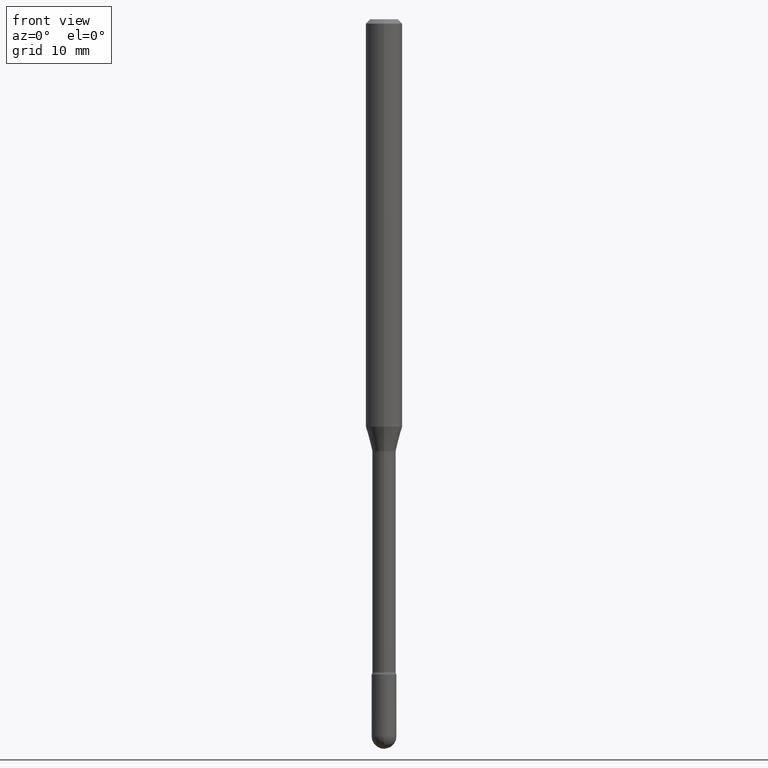
[diagram: clean part render]
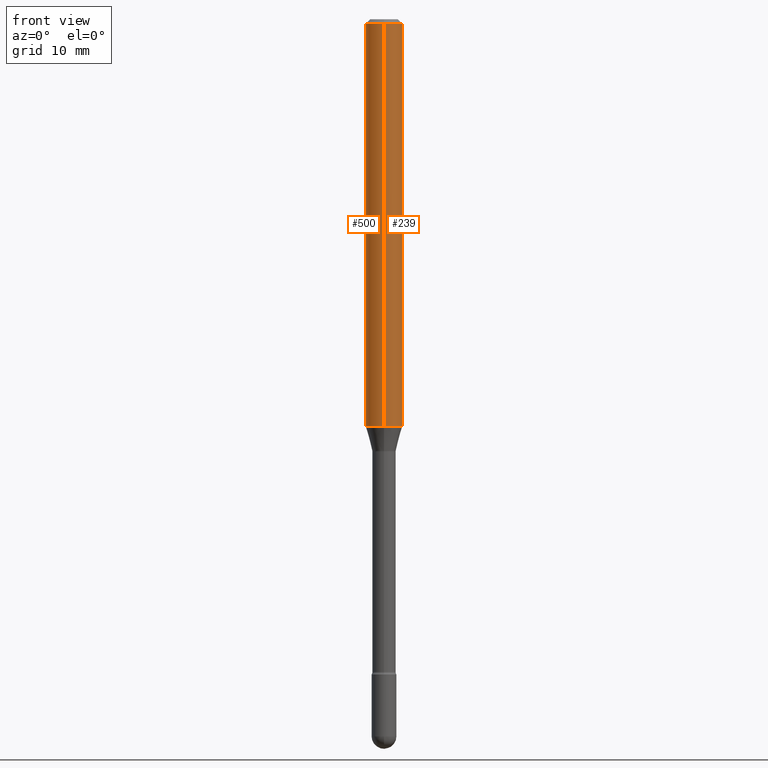
[diagram: same view with one multi-face feature highlighted, each face labeled with its STEP entity id]
A machine part, front view. The highlighted faces form ONE feature: a constant-radius fillet chain: 2 tangent blend faces with common blend radius 1.5875 mm. The faces share edges in the B-rep.
Their STEP definitions:
[1] entity #239 (Cylinder):
#7 = CIRCLE ( 'NONE', #196, 0.06250000000000000000 ) ;
#10 = ORIENTED_EDGE ( 'NONE', *, *, #458, .T. ) ;
#15 = VERTEX_POINT ( 'NONE', #63 ) ;
#39 = DIRECTION ( 'NONE',  ( -6.982962677686265922E-15, -1.000000000000000000, 4.370956789862821150E-15 ) ) ;
#40 = CARTESIAN_POINT ( 'NONE',  ( -4.364351673553572060E-16, -0.06250000000000484335, -1.395842254289321849 ) ) ;
#52 = ORIENTED_EDGE ( 'NONE', *, *, #255, .F. ) ;
#63 = CARTESIAN_POINT ( 'NONE',  ( 4.440892098500969316E-16, 0.06249999999999993755, -0.01500000000000030129 ) ) ;
#88 = CARTESIAN_POINT ( 'NONE',  ( -4.364351673553916201E-16, -0.06250000000000000000, 6.962965385738649378E-16 ) ) ;
#95 = EDGE_LOOP ( 'NONE', ( #10, #171, #445, #52 ) ) ;
#119 = DIRECTION ( 'NONE',  ( -6.982962677686265922E-15, -1.000000000000000000, 3.483106191921935554E-15 ) ) ;
#138 = CYLINDRICAL_SURFACE ( 'NONE', #279, 0.06250000000000000000 ) ;
#151 = AXIS2_PLACEMENT_3D ( 'NONE', #250, #469, #39 ) ;
#154 = CARTESIAN_POINT ( 'NONE',  ( 4.440892098500969316E-16, 0.06249999999999515665, -1.395842254289322293 ) ) ;
#171 = ORIENTED_EDGE ( 'NONE', *, *, #258, .T. ) ;
#178 = DIRECTION ( 'NONE',  ( -2.445406730385122357E-29, 3.491570234921900810E-15, 1.000000000000000000 ) ) ;
#196 = AXIS2_PLACEMENT_3D ( 'NONE', #336, #511, #119 ) ;
#204 = EDGE_CURVE ( 'NONE', #367, #15, #7, .T. ) ;
#233 = VECTOR ( 'NONE', #530, 39.37007874015748143 ) ;
#235 = VERTEX_POINT ( 'NONE', #40 ) ;
#239 = ADVANCED_FACE ( 'NONE', ( #307 ), #138, .T. ) ;
#250 = CARTESIAN_POINT ( 'NONE',  ( 3.413402043195049216E-29, -4.873681267722884872E-15, -1.395842254289322071 ) ) ;
#255 = EDGE_CURVE ( 'NONE', #235, #367, #429, .T. ) ;
#258 = EDGE_CURVE ( 'NONE', #541, #15, #441, .T. ) ;
#279 = AXIS2_PLACEMENT_3D ( 'NONE', #321, #345, #535 ) ;
#280 = CIRCLE ( 'NONE', #151, 0.06250000000000000000 ) ;
#307 = FACE_OUTER_BOUND ( 'NONE', #95, .T. ) ;
#310 = CARTESIAN_POINT ( 'NONE',  ( -4.364351673553912750E-16, -0.06250000000000005551, -0.01499999999999986587 ) ) ;
#321 = CARTESIAN_POINT ( 'NONE',  ( -1.169113584055446105E-44, 1.669184350826100908E-30, 4.780733988912460139E-16 ) ) ;
#336 = CARTESIAN_POINT ( 'NONE',  ( 3.668110095577703732E-31, -5.237355352382881044E-17, -0.01500000000000008271 ) ) ;
#345 = DIRECTION ( 'NONE',  ( -2.445406730385122357E-29, 3.491570234921901204E-15, 1.000000000000000000 ) ) ;
#367 = VERTEX_POINT ( 'NONE', #310 ) ;
#429 = LINE ( 'NONE', #88, #528 ) ;
#441 = LINE ( 'NONE', #483, #233 ) ;
#445 = ORIENTED_EDGE ( 'NONE', *, *, #204, .F. ) ;
#458 = EDGE_CURVE ( 'NONE', #235, #541, #280, .T. ) ;
#469 = DIRECTION ( 'NONE',  ( -2.445406730385122357E-29, 3.491570234921901204E-15, 1.000000000000000000 ) ) ;
#483 = CARTESIAN_POINT ( 'NONE',  ( 4.440892098500625669E-16, 0.06250000000000000000, 2.598502592086272379E-16 ) ) ;
#511 = DIRECTION ( 'NONE',  ( -2.445406730385122357E-29, 3.491570234921901204E-15, 1.000000000000000000 ) ) ;
#528 = VECTOR ( 'NONE', #178, 39.37007874015748143 ) ;
#530 = DIRECTION ( 'NONE',  ( -2.445406730385122357E-29, 3.491570234921900810E-15, 1.000000000000000000 ) ) ;
#535 = DIRECTION ( 'NONE',  ( -6.982962677686265922E-15, -1.000000000000000000, 3.491570234921901599E-15 ) ) ;
#541 = VERTEX_POINT ( 'NONE', #154 ) ;
[2] entity #500 (Cylinder):
#15 = VERTEX_POINT ( 'NONE', #63 ) ;
#32 = DIRECTION ( 'NONE',  ( -6.982962677686265922E-15, -1.000000000000000000, 4.370956789862821150E-15 ) ) ;
#40 = CARTESIAN_POINT ( 'NONE',  ( -4.364351673553572060E-16, -0.06250000000000484335, -1.395842254289321849 ) ) ;
#55 = AXIS2_PLACEMENT_3D ( 'NONE', #417, #374, #213 ) ;
#63 = CARTESIAN_POINT ( 'NONE',  ( 4.440892098500969316E-16, 0.06249999999999993755, -0.01500000000000030129 ) ) ;
#64 = CIRCLE ( 'NONE', #432, 0.06250000000000000000 ) ;
#74 = EDGE_CURVE ( 'NONE', #15, #367, #455, .T. ) ;
#88 = CARTESIAN_POINT ( 'NONE',  ( -4.364351673553916201E-16, -0.06250000000000000000, 6.962965385738649378E-16 ) ) ;
#113 = DIRECTION ( 'NONE',  ( -2.445406730385122357E-29, 3.491570234921901204E-15, 1.000000000000000000 ) ) ;
#126 = CARTESIAN_POINT ( 'NONE',  ( -1.169113584055446105E-44, 1.669184350826100908E-30, 4.780733988912460139E-16 ) ) ;
#130 = ORIENTED_EDGE ( 'NONE', *, *, #258, .F. ) ;
#149 = EDGE_LOOP ( 'NONE', ( #130, #550, #347, #198 ) ) ;
#154 = CARTESIAN_POINT ( 'NONE',  ( 4.440892098500969316E-16, 0.06249999999999515665, -1.395842254289322293 ) ) ;
#178 = DIRECTION ( 'NONE',  ( -2.445406730385122357E-29, 3.491570234921900810E-15, 1.000000000000000000 ) ) ;
#198 = ORIENTED_EDGE ( 'NONE', *, *, #74, .F. ) ;
#213 = DIRECTION ( 'NONE',  ( -6.982962677686265922E-15, -1.000000000000000000, 3.483106191921935554E-15 ) ) ;
#233 = VECTOR ( 'NONE', #530, 39.37007874015748143 ) ;
#235 = VERTEX_POINT ( 'NONE', #40 ) ;
#248 = AXIS2_PLACEMENT_3D ( 'NONE', #126, #113, #342 ) ;
#255 = EDGE_CURVE ( 'NONE', #235, #367, #429, .T. ) ;
#258 = EDGE_CURVE ( 'NONE', #541, #15, #441, .T. ) ;
#310 = CARTESIAN_POINT ( 'NONE',  ( -4.364351673553912750E-16, -0.06250000000000005551, -0.01499999999999986587 ) ) ;
#334 = CYLINDRICAL_SURFACE ( 'NONE', #248, 0.06250000000000000000 ) ;
#342 = DIRECTION ( 'NONE',  ( -6.982962677686265922E-15, -1.000000000000000000, 3.491570234921901599E-15 ) ) ;
#347 = ORIENTED_EDGE ( 'NONE', *, *, #255, .T. ) ;
#367 = VERTEX_POINT ( 'NONE', #310 ) ;
#374 = DIRECTION ( 'NONE',  ( -2.445406730385122357E-29, 3.491570234921901204E-15, 1.000000000000000000 ) ) ;
#381 = CARTESIAN_POINT ( 'NONE',  ( 3.413402043195049216E-29, -4.873681267722884872E-15, -1.395842254289322071 ) ) ;
#417 = CARTESIAN_POINT ( 'NONE',  ( 3.668110095577703732E-31, -5.237355352382881044E-17, -0.01500000000000008271 ) ) ;
#429 = LINE ( 'NONE', #88, #528 ) ;
#432 = AXIS2_PLACEMENT_3D ( 'NONE', #381, #558, #32 ) ;
#441 = LINE ( 'NONE', #483, #233 ) ;
#455 = CIRCLE ( 'NONE', #55, 0.06250000000000000000 ) ;
#475 = FACE_OUTER_BOUND ( 'NONE', #149, .T. ) ;
#483 = CARTESIAN_POINT ( 'NONE',  ( 4.440892098500625669E-16, 0.06250000000000000000, 2.598502592086272379E-16 ) ) ;
#485 = EDGE_CURVE ( 'NONE', #541, #235, #64, .T. ) ;
#500 = ADVANCED_FACE ( 'NONE', ( #475 ), #334, .T. ) ;
#528 = VECTOR ( 'NONE', #178, 39.37007874015748143 ) ;
#530 = DIRECTION ( 'NONE',  ( -2.445406730385122357E-29, 3.491570234921900810E-15, 1.000000000000000000 ) ) ;
#541 = VERTEX_POINT ( 'NONE', #154 ) ;
#550 = ORIENTED_EDGE ( 'NONE', *, *, #485, .T. ) ;
#558 = DIRECTION ( 'NONE',  ( -2.445406730385122357E-29, 3.491570234921901204E-15, 1.000000000000000000 ) ) ;